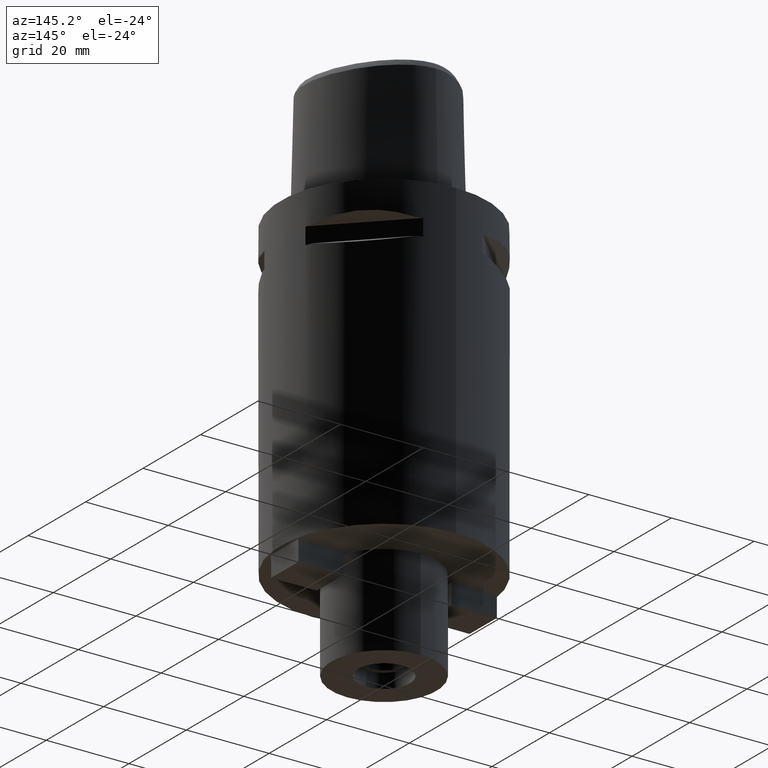
[diagram: clean part render]
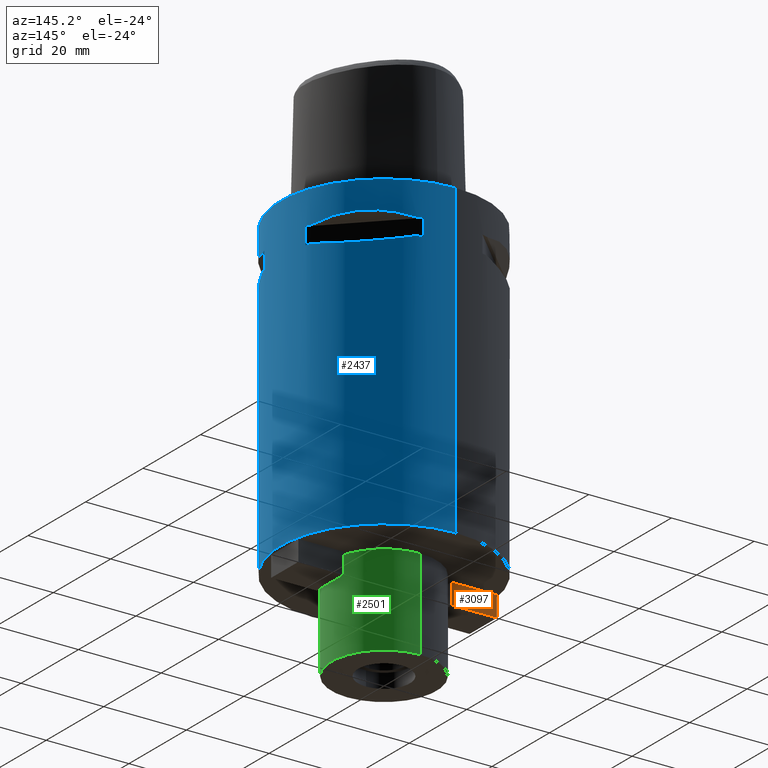
[diagram: same view with three faces highlighted in distinct colors, each labeled with its STEP entity id]
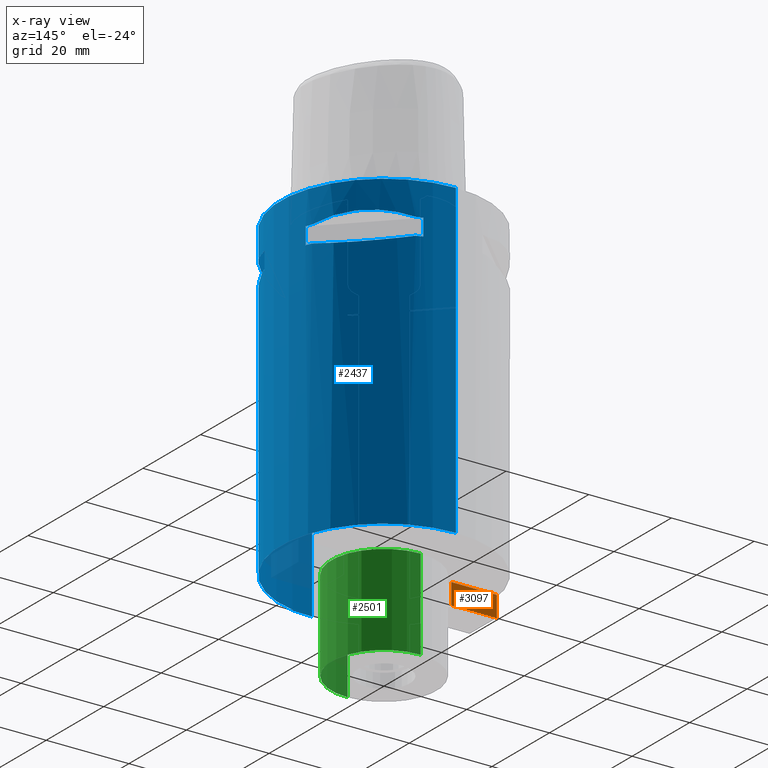
[diagram: x-ray of the same camera — body ghosted, the three highlighted faces saturated]
A machine part, auxiliary view with three faces highlighted in distinct colors.
The next image is the same camera in x-ray (body ghosted, the three faces saturated) — at least one of them is partly hidden behind the body in this view.
Their STEP definitions:

[orange] entity #3097 — the highlighted planar face has unit normal (0, -1, 0).
#1168=DIRECTION('',(-1.E0,0.E0,0.E0));
#1169=VECTOR('',#1168,1.1E1);
#1170=CARTESIAN_POINT('',(-1.3E1,4.75E0,-7.5E1));
#1171=LINE('',#1170,#1169);
#1182=DIRECTION('',(0.E0,0.E0,1.E0));
#1183=VECTOR('',#1182,5.E0);
#1184=CARTESIAN_POINT('',(-2.4E1,4.75E0,-8.E1));
#1185=LINE('',#1184,#1183);
#1217=DIRECTION('',(0.E0,0.E0,-1.E0));
#1218=VECTOR('',#1217,5.E0);
#1219=CARTESIAN_POINT('',(-1.3E1,4.75E0,-7.5E1));
#1220=LINE('',#1219,#1218);
#1224=DIRECTION('',(-1.E0,0.E0,0.E0));
#1225=VECTOR('',#1224,1.1E1);
#1226=CARTESIAN_POINT('',(-1.3E1,4.75E0,-8.E1));
#1227=LINE('',#1226,#1225);
#1616=CARTESIAN_POINT('',(-1.3E1,4.75E0,-7.5E1));
#1617=CARTESIAN_POINT('',(-2.4E1,4.75E0,-7.5E1));
#1618=VERTEX_POINT('',#1616);
#1619=VERTEX_POINT('',#1617);
#1693=CARTESIAN_POINT('',(-2.4E1,4.75E0,-8.E1));
#1694=VERTEX_POINT('',#1693);
#1695=CARTESIAN_POINT('',(-1.3E1,4.75E0,-8.E1));
#1696=VERTEX_POINT('',#1695);
#3083=CARTESIAN_POINT('',(0.E0,4.75E0,0.E0));
#3084=DIRECTION('',(0.E0,-1.E0,0.E0));
#3085=DIRECTION('',(0.E0,0.E0,-1.E0));
#3086=AXIS2_PLACEMENT_3D('',#3083,#3084,#3085);
#3087=PLANE('',#3086);
#3088=ORIENTED_EDGE('',*,*,#2463,.T.);
#3090=ORIENTED_EDGE('',*,*,#3089,.F.);
#3092=ORIENTED_EDGE('',*,*,#3091,.F.);
#3094=ORIENTED_EDGE('',*,*,#3093,.F.);
#3095=EDGE_LOOP('',(#3088,#3090,#3092,#3094));
#3096=FACE_OUTER_BOUND('',#3095,.F.);
#2463=EDGE_CURVE('',#1618,#1619,#1171,.T.);
#3089=EDGE_CURVE('',#1694,#1619,#1185,.T.);
#3091=EDGE_CURVE('',#1696,#1694,#1227,.T.);
#3093=EDGE_CURVE('',#1618,#1696,#1220,.T.);
#3097=ADVANCED_FACE('',(#3096),#3087,.F.);

[blue] entity #2437 — the highlighted cylindrical surface (partial cylindrical patch) has radius 25 mm, axis along (0, 0, -1).
#284=CARTESIAN_POINT('',(0.E0,0.E0,0.E0));
#285=DIRECTION('',(0.E0,0.E0,-1.E0));
#286=DIRECTION('',(0.E0,1.E0,0.E0));
#287=AXIS2_PLACEMENT_3D('',#284,#285,#286);
#376=DIRECTION('',(0.E0,0.E0,-1.E0));
#377=VECTOR('',#376,7.5E1);
#378=CARTESIAN_POINT('',(0.E0,-2.5E1,0.E0));
#379=LINE('',#378,#377);
#433=DIRECTION('',(0.E0,0.E0,-1.E0));
#434=VECTOR('',#433,7.5E1);
#435=CARTESIAN_POINT('',(0.E0,2.5E1,0.E0));
#436=LINE('',#435,#434);
#440=DIRECTION('',(0.E0,0.E0,-1.E0));
#441=VECTOR('',#440,4.1E0);
#442=CARTESIAN_POINT('',(7.159921374231E0,-2.395277699798E1,-7.95E0));
#443=LINE('',#442,#441);
#447=CARTESIAN_POINT('',(8.646484890752E0,-2.345715880140E1,-1.205E1));
#448=CARTESIAN_POINT('',(1.045010326509E1,-2.279233152396E1,-1.251490951851E1));
#449=CARTESIAN_POINT('',(1.371898848499E1,-2.112432544032E1,-1.316846568912E1));
#450=CARTESIAN_POINT('',(1.780567581317E1,-1.780567581317E1,-1.348201576758E1));
#451=CARTESIAN_POINT('',(2.112432544032E1,-1.371898848499E1,-1.316846568912E1));
#452=CARTESIAN_POINT('',(2.279233152396E1,-1.045010326509E1,-1.251490951851E1));
#453=CARTESIAN_POINT('',(2.345715880140E1,-8.646484890752E0,-1.205E1));
#458=DIRECTION('',(0.E0,0.E0,1.E0));
#459=VECTOR('',#458,4.1E0);
#460=CARTESIAN_POINT('',(2.395277699798E1,-7.159921374231E0,-1.205E1));
#461=LINE('',#460,#459);
#465=DIRECTION('',(0.E0,0.E0,-1.E0));
#466=VECTOR('',#465,4.1E0);
#467=CARTESIAN_POINT('',(2.395277699798E1,7.159921374231E0,-7.95E0));
#468=LINE('',#467,#466);
#472=CARTESIAN_POINT('',(2.345715880140E1,8.646484890752E0,-1.205E1));
#473=CARTESIAN_POINT('',(2.279233152396E1,1.045010326509E1,-1.251490951851E1));
#474=CARTESIAN_POINT('',(2.112432544032E1,1.371898848499E1,-1.316846568912E1));
#475=CARTESIAN_POINT('',(1.780567581317E1,1.780567581317E1,-1.348201576758E1));
#476=CARTESIAN_POINT('',(1.371898848499E1,2.112432544032E1,-1.316846568912E1));
#477=CARTESIAN_POINT('',(1.045010326509E1,2.279233152396E1,-1.251490951850E1));
#478=CARTESIAN_POINT('',(8.646484890752E0,2.345715880140E1,-1.205E1));
#483=DIRECTION('',(0.E0,0.E0,1.E0));
#484=VECTOR('',#483,4.1E0);
#485=CARTESIAN_POINT('',(7.159921374231E0,2.395277699798E1,-1.205E1));
#486=LINE('',#485,#484);
#490=CARTESIAN_POINT('',(0.E0,0.E0,-7.5E1));
#491=DIRECTION('',(0.E0,0.E0,1.E0));
#492=DIRECTION('',(0.E0,-1.E0,0.E0));
#493=AXIS2_PLACEMENT_3D('',#490,#491,#492);
#1238=CARTESIAN_POINT('',(8.646484890752E0,-2.345715880140E1,
-7.949999999999E0));
#1239=CARTESIAN_POINT('',(1.045010326509E1,-2.279233152396E1,
-7.485090481495E0));
#1240=CARTESIAN_POINT('',(1.371898848499E1,-2.112432544032E1,
-6.831534310876E0));
#1241=CARTESIAN_POINT('',(1.780567581317E1,-1.780567581317E1,
-6.517984232422E0));
#1242=CARTESIAN_POINT('',(2.112432544032E1,-1.371898848499E1,
-6.831534310876E0));
#1243=CARTESIAN_POINT('',(2.279233152396E1,-1.045010326509E1,
-7.485090481496E0));
#1244=CARTESIAN_POINT('',(2.345715880140E1,-8.646484890752E0,
-7.949999999999E0));
#1249=CARTESIAN_POINT('',(0.E0,0.E0,-7.95E0));
#1250=DIRECTION('',(0.E0,0.E0,1.E0));
#1251=DIRECTION('',(9.382863520558E-1,-3.458593956303E-1,0.E0));
#1252=AXIS2_PLACEMENT_3D('',#1249,#1250,#1251);
#1257=CARTESIAN_POINT('',(0.E0,0.E0,-7.95E0));
#1258=DIRECTION('',(0.E0,0.E0,1.E0));
#1259=DIRECTION('',(2.863968549694E-1,-9.581110799190E-1,0.E0));
#1260=AXIS2_PLACEMENT_3D('',#1257,#1258,#1259);
#1279=CARTESIAN_POINT('',(0.E0,0.E0,-1.205E1));
#1280=DIRECTION('',(0.E0,0.E0,-1.E0));
#1281=DIRECTION('',(9.581110799190E-1,-2.863968549694E-1,0.E0));
#1282=AXIS2_PLACEMENT_3D('',#1279,#1280,#1281);
#1287=CARTESIAN_POINT('',(0.E0,0.E0,-1.205E1));
#1288=DIRECTION('',(0.E0,0.E0,-1.E0));
#1289=DIRECTION('',(3.458593956303E-1,-9.382863520558E-1,0.E0));
#1290=AXIS2_PLACEMENT_3D('',#1287,#1288,#1289);
#1309=CARTESIAN_POINT('',(2.345715880140E1,8.646484890752E0,-7.949999999999E0));
#1310=CARTESIAN_POINT('',(2.279233152396E1,1.045010326509E1,-7.485090481495E0));
#1311=CARTESIAN_POINT('',(2.112432544032E1,1.371898848499E1,-6.831534310876E0));
#1312=CARTESIAN_POINT('',(1.780567581317E1,1.780567581317E1,-6.517984232422E0));
#1313=CARTESIAN_POINT('',(1.371898848499E1,2.112432544032E1,-6.831534310876E0));
#1314=CARTESIAN_POINT('',(1.045010326509E1,2.279233152396E1,-7.485090481496E0));
#1315=CARTESIAN_POINT('',(8.646484890752E0,2.345715880140E1,-7.949999999999E0));
#1320=CARTESIAN_POINT('',(0.E0,0.E0,-7.95E0));
#1321=DIRECTION('',(0.E0,0.E0,1.E0));
#1322=DIRECTION('',(3.458593956303E-1,9.382863520558E-1,0.E0));
#1323=AXIS2_PLACEMENT_3D('',#1320,#1321,#1322);
#1328=CARTESIAN_POINT('',(0.E0,0.E0,-7.95E0));
#1329=DIRECTION('',(0.E0,0.E0,1.E0));
#1330=DIRECTION('',(9.581110799190E-1,2.863968549694E-1,0.E0));
#1331=AXIS2_PLACEMENT_3D('',#1328,#1329,#1330);
#1350=CARTESIAN_POINT('',(0.E0,0.E0,-1.205E1));
#1351=DIRECTION('',(0.E0,0.E0,-1.E0));
#1352=DIRECTION('',(2.863968549694E-1,9.581110799190E-1,0.E0));
#1353=AXIS2_PLACEMENT_3D('',#1350,#1351,#1352);
#1358=CARTESIAN_POINT('',(0.E0,0.E0,-1.205E1));
#1359=DIRECTION('',(0.E0,0.E0,-1.E0));
#1360=DIRECTION('',(9.382863520558E-1,3.458593956303E-1,0.E0));
#1361=AXIS2_PLACEMENT_3D('',#1358,#1359,#1360);
#1544=CARTESIAN_POINT('',(0.E0,-2.5E1,0.E0));
#1545=CARTESIAN_POINT('',(0.E0,2.5E1,0.E0));
#1546=VERTEX_POINT('',#1544);
#1547=VERTEX_POINT('',#1545);
#1548=CARTESIAN_POINT('',(0.E0,2.5E1,-7.5E1));
#1549=VERTEX_POINT('',#1548);
#1550=CARTESIAN_POINT('',(0.E0,-2.5E1,-7.5E1));
#1551=VERTEX_POINT('',#1550);
#1578=VERTEX_POINT('',#1238);
#1579=VERTEX_POINT('',#1244);
#1580=CARTESIAN_POINT('',(7.159921374235E0,-2.395277699798E1,-7.95E0));
#1581=VERTEX_POINT('',#1580);
#1582=CARTESIAN_POINT('',(7.159921374231E0,-2.395277699798E1,-1.205E1));
#1583=VERTEX_POINT('',#1582);
#1584=CARTESIAN_POINT('',(8.646484890757E0,-2.345715880140E1,-1.205E1));
#1585=VERTEX_POINT('',#1584);
#1586=VERTEX_POINT('',#453);
#1587=CARTESIAN_POINT('',(2.395277699798E1,-7.159921374235E0,-1.205E1));
#1588=VERTEX_POINT('',#1587);
#1589=CARTESIAN_POINT('',(2.395277699798E1,-7.159921374231E0,-7.95E0));
#1590=VERTEX_POINT('',#1589);
#1591=VERTEX_POINT('',#1309);
#1592=VERTEX_POINT('',#1315);
#1593=CARTESIAN_POINT('',(2.395277699798E1,7.159921374235E0,-7.95E0));
#1594=VERTEX_POINT('',#1593);
#1595=CARTESIAN_POINT('',(2.395277699798E1,7.159921374231E0,-1.205E1));
#1596=VERTEX_POINT('',#1595);
#1597=CARTESIAN_POINT('',(2.345715880140E1,8.646484890757E0,-1.205E1));
#1598=VERTEX_POINT('',#1597);
#1599=VERTEX_POINT('',#478);
#1600=CARTESIAN_POINT('',(7.159921374235E0,2.395277699798E1,-1.205E1));
#1601=VERTEX_POINT('',#1600);
#1602=CARTESIAN_POINT('',(7.159921374231E0,2.395277699798E1,-7.95E0));
#1603=VERTEX_POINT('',#1602);
#2389=CARTESIAN_POINT('',(0.E0,0.E0,4.85E0));
#2390=DIRECTION('',(0.E0,0.E0,-1.E0));
#2391=DIRECTION('',(0.E0,-1.E0,0.E0));
#2392=AXIS2_PLACEMENT_3D('',#2389,#2390,#2391);
#2393=CYLINDRICAL_SURFACE('',#2392,2.5E1);
#2394=ORIENTED_EDGE('',*,*,#2343,.T.);
#2396=ORIENTED_EDGE('',*,*,#2395,.F.);
#2397=ORIENTED_EDGE('',*,*,#2346,.F.);
#2398=ORIENTED_EDGE('',*,*,#2328,.F.);
#2399=EDGE_LOOP('',(#2394,#2396,#2397,#2398));
#2400=FACE_OUTER_BOUND('',#2399,.F.);
#2402=ORIENTED_EDGE('',*,*,#2401,.F.);
#2404=ORIENTED_EDGE('',*,*,#2403,.F.);
#2406=ORIENTED_EDGE('',*,*,#2405,.T.);
#2408=ORIENTED_EDGE('',*,*,#2407,.F.);
#2410=ORIENTED_EDGE('',*,*,#2409,.T.);
#2412=ORIENTED_EDGE('',*,*,#2411,.F.);
#2414=ORIENTED_EDGE('',*,*,#2413,.T.);
#2416=ORIENTED_EDGE('',*,*,#2415,.F.);
#2417=EDGE_LOOP('',(#2402,#2404,#2406,#2408,#2410,#2412,#2414,#2416));
#2418=FACE_BOUND('',#2417,.F.);
#2420=ORIENTED_EDGE('',*,*,#2419,.F.);
#2422=ORIENTED_EDGE('',*,*,#2421,.F.);
#2424=ORIENTED_EDGE('',*,*,#2423,.T.);
#2426=ORIENTED_EDGE('',*,*,#2425,.F.);
#2428=ORIENTED_EDGE('',*,*,#2427,.T.);
#2430=ORIENTED_EDGE('',*,*,#2429,.F.);
#2432=ORIENTED_EDGE('',*,*,#2431,.T.);
#2434=ORIENTED_EDGE('',*,*,#2433,.F.);
#2435=EDGE_LOOP('',(#2420,#2422,#2424,#2426,#2428,#2430,#2432,#2434));
#2436=FACE_BOUND('',#2435,.F.);
#288=CIRCLE('',#287,2.5E1);
#454=B_SPLINE_CURVE_WITH_KNOTS('',3,(#447,#448,#449,#450,#451,#452,#453),
.UNSPECIFIED.,.F.,.F.,(4,1,1,1,4),(0.E0,2.5E-1,5.E-1,7.5E-1,1.E0),
.UNSPECIFIED.);
#479=B_SPLINE_CURVE_WITH_KNOTS('',3,(#472,#473,#474,#475,#476,#477,#478),
.UNSPECIFIED.,.F.,.F.,(4,1,1,1,4),(0.E0,2.5E-1,5.E-1,7.5E-1,1.E0),
.UNSPECIFIED.);
#494=CIRCLE('',#493,2.5E1);
#1245=B_SPLINE_CURVE_WITH_KNOTS('',3,(#1238,#1239,#1240,#1241,#1242,#1243,
#1244),.UNSPECIFIED.,.F.,.F.,(4,1,1,1,4),(0.E0,2.5E-1,5.E-1,7.5E-1,1.E0),
.UNSPECIFIED.);
#1253=CIRCLE('',#1252,2.5E1);
#1261=CIRCLE('',#1260,2.5E1);
#1283=CIRCLE('',#1282,2.5E1);
#1291=CIRCLE('',#1290,2.5E1);
#1316=B_SPLINE_CURVE_WITH_KNOTS('',3,(#1309,#1310,#1311,#1312,#1313,#1314,
#1315),.UNSPECIFIED.,.F.,.F.,(4,1,1,1,4),(0.E0,2.5E-1,5.E-1,7.5E-1,1.E0),
.UNSPECIFIED.);
#1324=CIRCLE('',#1323,2.5E1);
#1332=CIRCLE('',#1331,2.5E1);
#1354=CIRCLE('',#1353,2.5E1);
#1362=CIRCLE('',#1361,2.5E1);
#2328=EDGE_CURVE('',#1547,#1546,#288,.T.);
#2343=EDGE_CURVE('',#1547,#1549,#436,.T.);
#2346=EDGE_CURVE('',#1546,#1551,#379,.T.);
#2395=EDGE_CURVE('',#1551,#1549,#494,.T.);
#2401=EDGE_CURVE('',#1578,#1579,#1245,.T.);
#2403=EDGE_CURVE('',#1581,#1578,#1261,.T.);
#2405=EDGE_CURVE('',#1581,#1583,#443,.T.);
#2407=EDGE_CURVE('',#1585,#1583,#1291,.T.);
#2409=EDGE_CURVE('',#1585,#1586,#454,.T.);
#2411=EDGE_CURVE('',#1588,#1586,#1283,.T.);
#2413=EDGE_CURVE('',#1588,#1590,#461,.T.);
#2415=EDGE_CURVE('',#1579,#1590,#1253,.T.);
#2419=EDGE_CURVE('',#1591,#1592,#1316,.T.);
#2421=EDGE_CURVE('',#1594,#1591,#1332,.T.);
#2423=EDGE_CURVE('',#1594,#1596,#468,.T.);
#2425=EDGE_CURVE('',#1598,#1596,#1362,.T.);
#2427=EDGE_CURVE('',#1598,#1599,#479,.T.);
#2429=EDGE_CURVE('',#1601,#1599,#1354,.T.);
#2431=EDGE_CURVE('',#1601,#1603,#486,.T.);
#2433=EDGE_CURVE('',#1592,#1603,#1324,.T.);
#2437=ADVANCED_FACE('',(#2400,#2418,#2436),#2393,.T.);

[green] entity #2501 — the highlighted cylindrical surface (partial cylindrical patch) has radius 12.7 mm, axis along (0, 0, -1).
#514=CARTESIAN_POINT('',(0.E0,0.E0,-7.5E1));
#515=DIRECTION('',(0.E0,0.E0,-1.E0));
#516=DIRECTION('',(0.E0,1.E0,0.E0));
#517=AXIS2_PLACEMENT_3D('',#514,#515,#516);
#550=DIRECTION('',(0.E0,0.E0,-1.E0));
#551=VECTOR('',#550,2.2E1);
#552=CARTESIAN_POINT('',(0.E0,-1.27E1,-7.5E1));
#553=LINE('',#552,#551);
#557=DIRECTION('',(0.E0,0.E0,-1.E0));
#558=VECTOR('',#557,2.2E1);
#559=CARTESIAN_POINT('',(0.E0,1.27E1,-7.5E1));
#560=LINE('',#559,#558);
#564=CARTESIAN_POINT('',(0.E0,0.E0,-9.7E1));
#565=DIRECTION('',(0.E0,0.E0,1.E0));
#566=DIRECTION('',(0.E0,-1.E0,0.E0));
#567=AXIS2_PLACEMENT_3D('',#564,#565,#566);
#1604=CARTESIAN_POINT('',(0.E0,-1.27E1,-7.5E1));
#1605=CARTESIAN_POINT('',(0.E0,1.27E1,-7.5E1));
#1606=VERTEX_POINT('',#1604);
#1607=VERTEX_POINT('',#1605);
#1624=CARTESIAN_POINT('',(0.E0,1.27E1,-9.7E1));
#1625=VERTEX_POINT('',#1624);
#1626=CARTESIAN_POINT('',(0.E0,-1.27E1,-9.7E1));
#1627=VERTEX_POINT('',#1626);
#2489=CARTESIAN_POINT('',(0.E0,0.E0,4.85E0));
#2490=DIRECTION('',(0.E0,0.E0,-1.E0));
#2491=DIRECTION('',(0.E0,-1.E0,0.E0));
#2492=AXIS2_PLACEMENT_3D('',#2489,#2490,#2491);
#2493=CYLINDRICAL_SURFACE('',#2492,1.27E1);
#2494=ORIENTED_EDGE('',*,*,#2479,.T.);
#2496=ORIENTED_EDGE('',*,*,#2495,.F.);
#2497=ORIENTED_EDGE('',*,*,#2482,.F.);
#2498=ORIENTED_EDGE('',*,*,#2449,.F.);
#2499=EDGE_LOOP('',(#2494,#2496,#2497,#2498));
#2500=FACE_OUTER_BOUND('',#2499,.F.);
#518=CIRCLE('',#517,1.27E1);
#568=CIRCLE('',#567,1.27E1);
#2449=EDGE_CURVE('',#1607,#1606,#518,.T.);
#2479=EDGE_CURVE('',#1607,#1625,#560,.T.);
#2482=EDGE_CURVE('',#1606,#1627,#553,.T.);
#2495=EDGE_CURVE('',#1627,#1625,#568,.T.);
#2501=ADVANCED_FACE('',(#2500),#2493,.T.);